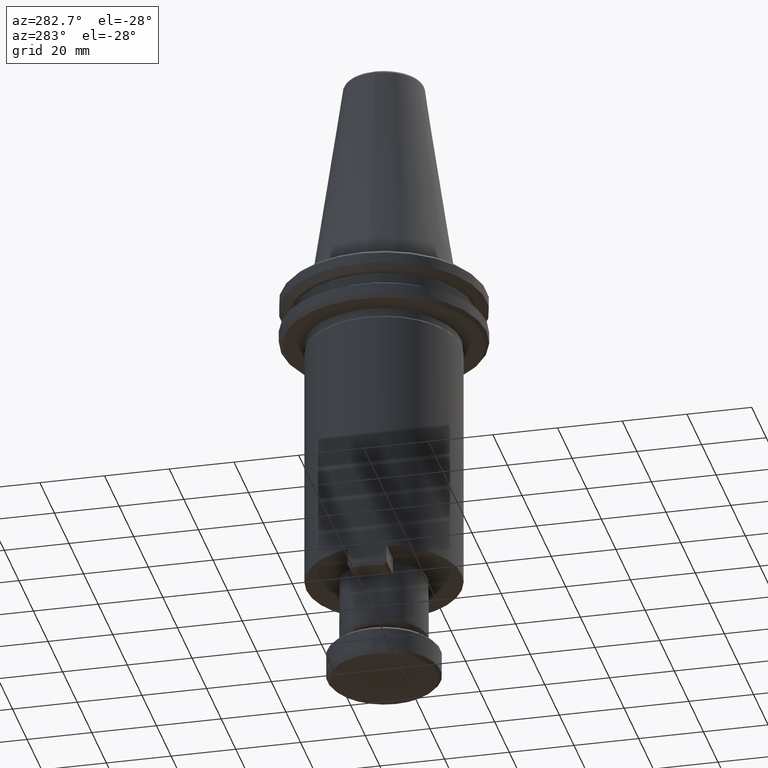
[diagram: clean part render]
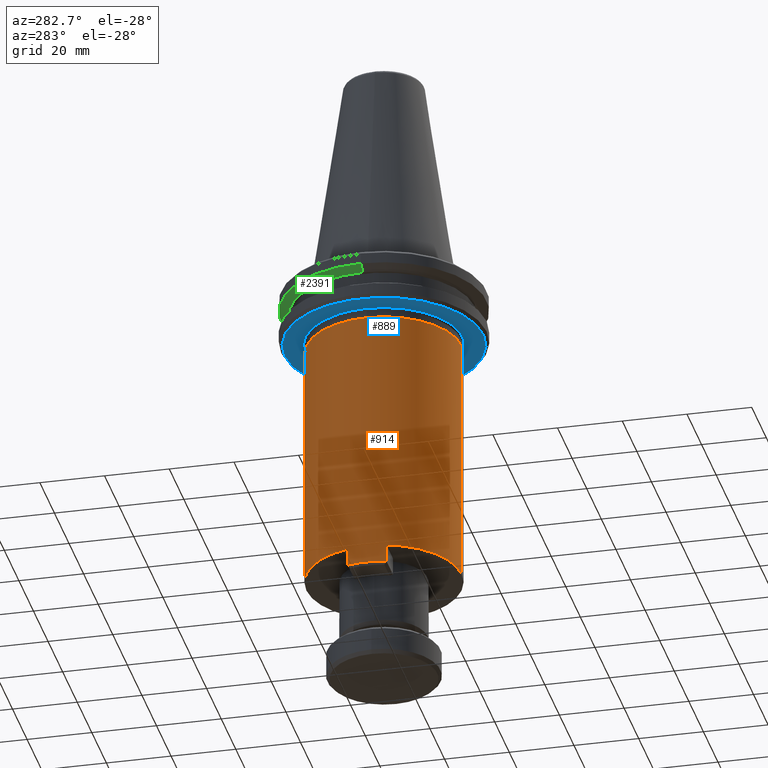
[diagram: same view with three faces highlighted in distinct colors, each labeled with its STEP entity id]
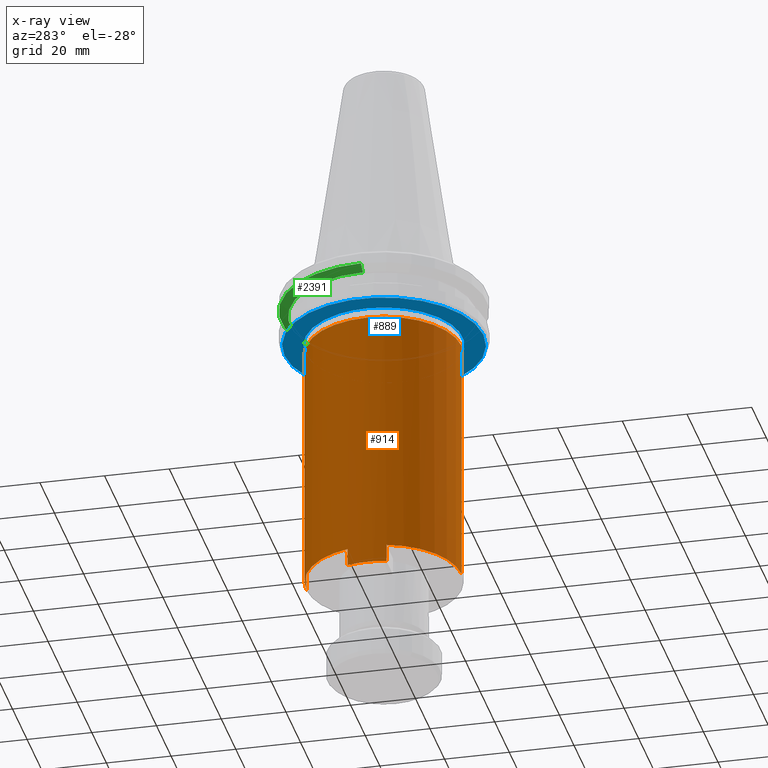
[diagram: x-ray of the same camera — body ghosted, the three highlighted faces saturated]
A machine part, auxiliary view with three faces highlighted in distinct colors.
The next image is the same camera in x-ray (body ghosted, the three faces saturated) — at least one of them is partly hidden behind the body in this view.
Their STEP definitions:

[orange] entity #914 — the highlighted cylindrical surface (partial cylindrical patch) has radius 24 mm, axis along (0, 0, 1).
#37 = VERTEX_POINT ( 'NONE', #691 ) ;
#139 = EDGE_CURVE ( 'NONE', #540, #1728, #2439, .T. ) ;
#225 = ORIENTED_EDGE ( 'NONE', *, *, #2622, .T. ) ;
#243 = ORIENTED_EDGE ( 'NONE', *, *, #2421, .T. ) ;
#244 = CARTESIAN_POINT ( 'NONE',  ( 71.81983096143052600, 87.85641994208592100, -11.28401357644060200 ) ) ;
#298 = DIRECTION ( 'NONE',  ( 1.000000000000000000, 0.0000000000000000000, 0.0000000000000000000 ) ) ;
#335 = AXIS2_PLACEMENT_3D ( 'NONE', #543, #2659, #2643 ) ;
#339 = CARTESIAN_POINT ( 'NONE',  ( 48.58193088314447300, 93.85641993805202800, -11.28401357644060200 ) ) ;
#346 = CARTESIAN_POINT ( 'NONE',  ( 71.81983096143052600, 87.85641994208592100, 72.11598642355937700 ) ) ;
#354 = EDGE_LOOP ( 'NONE', ( #1100, #1658, #225, #243, #1299, #357, #2103, #2603, #882 ) ) ;
#357 = ORIENTED_EDGE ( 'NONE', *, *, #777, .T. ) ;
#384 = DIRECTION ( 'NONE',  ( 0.0000000000000000000, 1.000000000000000000, 0.0000000000000000000 ) ) ;
#454 = DIRECTION ( 'NONE',  ( 0.0000000000000000000, 1.000000000000000000, 0.0000000000000000000 ) ) ;
#481 = CARTESIAN_POINT ( 'NONE',  ( 48.58193088431739400, 81.85641994157707300, -5.784013573940600700 ) ) ;
#503 = EDGE_CURVE ( 'NONE', #1728, #2199, #2778, .T. ) ;
#540 = VERTEX_POINT ( 'NONE', #1805 ) ;
#543 = CARTESIAN_POINT ( 'NONE',  ( 71.81983096143052600, 87.85641994208592100, -5.784013573940601600 ) ) ;
#577 = DIRECTION ( 'NONE',  ( 1.000000000000000000, 0.0000000000000000000, 0.0000000000000000000 ) ) ;
#593 = CARTESIAN_POINT ( 'NONE',  ( 71.81983096143052600, 63.85641994208590700, -5.784013571440600500 ) ) ;
#691 = CARTESIAN_POINT ( 'NONE',  ( 48.58193088366523700, 93.85641994006896000, -5.784013573940600700 ) ) ;
#716 = DIRECTION ( 'NONE',  ( 0.0000000000000000000, 1.000000000000000000, 0.0000000000000000000 ) ) ;
#726 = CYLINDRICAL_SURFACE ( 'NONE', #2476, 24.00000000000000700 ) ;
#755 = LINE ( 'NONE', #2178, #2768 ) ;
#777 = EDGE_CURVE ( 'NONE', #1572, #37, #1485, .T. ) ;
#828 = VECTOR ( 'NONE', #1631, 1000.000000000000000 ) ;
#849 = EDGE_CURVE ( 'NONE', #37, #1739, #1034, .T. ) ;
#861 = CIRCLE ( 'NONE', #2754, 24.00000000000000700 ) ;
#882 = ORIENTED_EDGE ( 'NONE', *, *, #139, .T. ) ;
#914 = ADVANCED_FACE ( 'NONE', ( #2485 ), #726, .T. ) ;
#956 = CARTESIAN_POINT ( 'NONE',  ( 71.81983096143052600, 111.8564199420859200, -5.784013573940601600 ) ) ;
#984 = DIRECTION ( 'NONE',  ( 0.0000000000000000000, 0.0000000000000000000, 1.000000000000000000 ) ) ;
#1012 = CIRCLE ( 'NONE', #1386, 23.99999999999999300 ) ;
#1028 = EDGE_CURVE ( 'NONE', #1739, #540, #861, .T. ) ;
#1034 = LINE ( 'NONE', #339, #828 ) ;
#1065 = DIRECTION ( 'NONE',  ( 0.0000000000000000000, 0.0000000000000000000, 1.000000000000000000 ) ) ;
#1067 = VERTEX_POINT ( 'NONE', #2081 ) ;
#1100 = ORIENTED_EDGE ( 'NONE', *, *, #503, .T. ) ;
#1158 = CARTESIAN_POINT ( 'NONE',  ( 71.81983096143052600, 87.85641994208592100, -11.28401357644060500 ) ) ;
#1163 = VERTEX_POINT ( 'NONE', #1705 ) ;
#1299 = ORIENTED_EDGE ( 'NONE', *, *, #1762, .F. ) ;
#1386 = AXIS2_PLACEMENT_3D ( 'NONE', #346, #1867, #577 ) ;
#1393 = DIRECTION ( 'NONE',  ( 0.0000000000000000000, 0.0000000000000000000, 1.000000000000000000 ) ) ;
#1435 = VECTOR ( 'NONE', #1972, 1000.000000000000000 ) ;
#1463 = DIRECTION ( 'NONE',  ( 0.0000000000000000000, 0.0000000000000000000, 1.000000000000000000 ) ) ;
#1485 = CIRCLE ( 'NONE', #335, 24.00000000000000700 ) ;
#1572 = VERTEX_POINT ( 'NONE', #956 ) ;
#1631 = DIRECTION ( 'NONE',  ( -0.0000000000000000000, -0.0000000000000000000, -1.000000000000000000 ) ) ;
#1658 = ORIENTED_EDGE ( 'NONE', *, *, #2531, .T. ) ;
#1689 = LINE ( 'NONE', #2385, #1435 ) ;
#1705 = CARTESIAN_POINT ( 'NONE',  ( 71.81983096143052600, 111.8564199420859200, 72.11598642355937700 ) ) ;
#1728 = VERTEX_POINT ( 'NONE', #481 ) ;
#1739 = VERTEX_POINT ( 'NONE', #2555 ) ;
#1762 = EDGE_CURVE ( 'NONE', #1572, #1163, #755, .T. ) ;
#1805 = CARTESIAN_POINT ( 'NONE',  ( 48.58193088459378100, 81.85641994164842600, -11.28401357672604500 ) ) ;
#1867 = DIRECTION ( 'NONE',  ( -0.0000000000000000000, 0.0000000000000000000, -1.000000000000000000 ) ) ;
#1972 = DIRECTION ( 'NONE',  ( 0.0000000000000000000, 0.0000000000000000000, 1.000000000000000000 ) ) ;
#1986 = AXIS2_PLACEMENT_3D ( 'NONE', #2271, #2410, #298 ) ;
#2028 = CARTESIAN_POINT ( 'NONE',  ( 71.81983096143052600, 87.85641994208592100, -5.784013571440600500 ) ) ;
#2081 = CARTESIAN_POINT ( 'NONE',  ( 71.81983096143052600, 63.85641994208590700, 72.11598642355937700 ) ) ;
#2103 = ORIENTED_EDGE ( 'NONE', *, *, #849, .T. ) ;
#2178 = CARTESIAN_POINT ( 'NONE',  ( 71.81983096143052600, 111.8564199420859200, -11.28401357644060200 ) ) ;
#2199 = VERTEX_POINT ( 'NONE', #593 ) ;
#2271 = CARTESIAN_POINT ( 'NONE',  ( 71.81983096143052600, 87.85641994208592100, 72.11598642355937700 ) ) ;
#2385 = CARTESIAN_POINT ( 'NONE',  ( 71.81983096143052600, 63.85641994208590700, -11.28401357644060200 ) ) ;
#2405 = CIRCLE ( 'NONE', #1986, 23.99999999999999300 ) ;
#2410 = DIRECTION ( 'NONE',  ( -0.0000000000000000000, 0.0000000000000000000, -1.000000000000000000 ) ) ;
#2421 = EDGE_CURVE ( 'NONE', #2752, #1163, #2405, .T. ) ;
#2439 = LINE ( 'NONE', #2666, #2644 ) ;
#2476 = AXIS2_PLACEMENT_3D ( 'NONE', #244, #2518, #454 ) ;
#2485 = FACE_OUTER_BOUND ( 'NONE', #354, .T. ) ;
#2518 = DIRECTION ( 'NONE',  ( 0.0000000000000000000, 0.0000000000000000000, 1.000000000000000000 ) ) ;
#2531 = EDGE_CURVE ( 'NONE', #2199, #1067, #1689, .T. ) ;
#2555 = CARTESIAN_POINT ( 'NONE',  ( 48.58193088366525100, 93.85641994006896000, -11.28401357644060500 ) ) ;
#2603 = ORIENTED_EDGE ( 'NONE', *, *, #1028, .T. ) ;
#2622 = EDGE_CURVE ( 'NONE', #1067, #2752, #1012, .T. ) ;
#2643 = DIRECTION ( 'NONE',  ( 0.0000000000000000000, 1.000000000000000000, 0.0000000000000000000 ) ) ;
#2644 = VECTOR ( 'NONE', #1065, 1000.000000000000000 ) ;
#2645 = AXIS2_PLACEMENT_3D ( 'NONE', #2028, #1463, #384 ) ;
#2659 = DIRECTION ( 'NONE',  ( 0.0000000000000000000, 0.0000000000000000000, 1.000000000000000000 ) ) ;
#2666 = CARTESIAN_POINT ( 'NONE',  ( 48.58193088444879500, 81.85641994106819700, -11.28401357644060200 ) ) ;
#2726 = CARTESIAN_POINT ( 'NONE',  ( 47.81983096143051900, 87.85641994208592100, 72.11598642355937700 ) ) ;
#2752 = VERTEX_POINT ( 'NONE', #2726 ) ;
#2754 = AXIS2_PLACEMENT_3D ( 'NONE', #1158, #1393, #716 ) ;
#2768 = VECTOR ( 'NONE', #984, 1000.000000000000000 ) ;
#2778 = CIRCLE ( 'NONE', #2645, 24.00000000000000700 ) ;

[blue] entity #889 — the highlighted planar face has unit normal (0, 0, -1).
#1 = CARTESIAN_POINT ( 'NONE',  ( 56.14560718262166000, 69.28717906333989200, 75.11598642355937700 ) ) ;
#13 = CARTESIAN_POINT ( 'NONE',  ( 63.23944049597944400, 65.12141512757895600, 75.11598642355939100 ) ) ;
#16 = DIRECTION ( 'NONE',  ( -1.000000000000000000, 0.0000000000000000000, -0.0000000000000000000 ) ) ;
#20 = CARTESIAN_POINT ( 'NONE',  ( 71.28960445991205600, 63.56216727250783500, 75.11598642355939100 ) ) ;
#32 = CARTESIAN_POINT ( 'NONE',  ( 79.32980179460986400, 64.74583914028653500, 75.11598642355937700 ) ) ;
#41 = CARTESIAN_POINT ( 'NONE',  ( 47.86084312643223600, 91.91335907272322500, 75.11598642355937700 ) ) ;
#46 = CARTESIAN_POINT ( 'NONE',  ( 88.62878004473859100, 70.28196637081762800, 75.11598642355937700 ) ) ;
#60 = CARTESIAN_POINT ( 'NONE',  ( 92.71083083689228500, 75.44441053301801500, 75.11598642355937700 ) ) ;
#83 = CARTESIAN_POINT ( 'NONE',  ( 63.60393548890107200, 110.7254108799852600, 75.11598642355936300 ) ) ;
#90 = B_SPLINE_CURVE_WITH_KNOTS ( 'NONE', 3,
 ( #807, #2284, #2818, #2179, #2557, #2428, #1640, #2596, #1519, #678, #1839, #1794, #878, #319, #307, #1813, #2272, #1664, #98, #1871, #170, #701, #1410, #2742, #802, #2353, #2157, #2127, #2384, #1457, #886, #1428, #943, #1570, #1724, #994, #1995, #1966, #1230, #1812, #2413, #1770, #1026, #709, #1670, #400, #1699, #1612, #1038, #1623, #2760, #1707, #174, #1013, #1343, #2747, #862, #83, #1538, #249, #797, #2252, #2114, #590, #694, #1482, #2268, #359, #235, #530, #2287, #2191, #2677, #1857, #628, #1384, #2243, #2454, #143, #2130, #2626, #950, #1325, #1824, #2313, #2755, #153, #2343, #93, #220, #2392, #1284, #1603, #1004, #344, #301, #485, #41, #2738, #1981, #2142, #468 ),
 .UNSPECIFIED., .F., .F.,
 ( 4, 1, 1, 1, 1, 2, 2, 1, 1, 1, 1, 2, 2, 1, 1, 1, 2, 2, 2, 1, 1, 1, 2, 2, 1, 1, 1, 1, 2, 2, 1, 1, 1, 1, 2, 2, 2, 1, 1, 1, 1, 2, 2, 1, 1, 1, 1, 2, 2, 1, 1, 1, 2, 2, 2, 1, 1, 1, 2, 2, 1, 1, 1, 1, 2, 2, 1, 1, 1, 1, 2, 2, 4 ),
 ( 0.0000000000000000000, 0.03125000000000852800, 0.04687500000001279500, 0.05468750000001448100, 0.05859375000001532100, 0.06054687500001574400, 0.06250000000001616800, 0.09375000000002062200, 0.1093750000000226100, 0.1171875000000235900, 0.1210937500000242900, 0.1230468750000246300, 0.1250000000000249500, 0.1562500000000290300, 0.1718750000000306400, 0.1796875000000314700, 0.1835937500000316700, 0.1875000000000318600, 0.2500000000000297000, 0.2812500000000286400, 0.2968750000000281400, 0.3046875000000278700, 0.3085937500000280900, 0.3125000000000283100, 0.3437500000000308600, 0.3593750000000320300, 0.3671875000000325900, 0.3710937500000328100, 0.3730468750000329700, 0.3750000000000330800, 0.4062500000000368000, 0.4218750000000386900, 0.4296875000000393000, 0.4335937500000396300, 0.4355468750000394700, 0.4375000000000393600, 0.5000000000000350800, 0.5312500000000332000, 0.5468750000000325300, 0.5546875000000324200, 0.5585937500000326400, 0.5605468750000327500, 0.5625000000000328600, 0.5937500000000343100, 0.6093750000000350800, 0.6171875000000353100, 0.6210937500000353100, 0.6230468750000351900, 0.6250000000000351900, 0.6562500000000353100, 0.6718750000000349700, 0.6796875000000349700, 0.6835937500000351900, 0.6875000000000355300, 0.7500000000000383000, 0.7812500000000398600, 0.7968750000000407500, 0.8046875000000413000, 0.8085937500000413000, 0.8125000000000411900, 0.8437500000000379700, 0.8593750000000366400, 0.8671875000000358600, 0.8710937500000350800, 0.8730468750000346400, 0.8750000000000341900, 0.9062500000000255400, 0.9218750000000214300, 0.9296875000000191000, 0.9335937500000176500, 0.9355468750000168800, 0.9375000000000159900, 1.000000000000000000 ),
 .UNSPECIFIED. ) ;
#93 = CARTESIAN_POINT ( 'NONE',  ( 48.93792385470063500, 96.03629825016767500, 75.11598642355939100 ) ) ;
#98 = CARTESIAN_POINT ( 'NONE',  ( 89.13995690686341800, 104.9273131230720800, 75.11598642355937700 ) ) ;
#124 = AXIS2_PLACEMENT_3D ( 'NONE', #2543, #2573, #773 ) ;
#143 = CARTESIAN_POINT ( 'NONE',  ( 51.30225341363285500, 100.8855517442787700, 75.11598642355939100 ) ) ;
#153 = CARTESIAN_POINT ( 'NONE',  ( 49.09203409571665600, 96.45848112672675300, 75.11598642355934900 ) ) ;
#170 = CARTESIAN_POINT ( 'NONE',  ( 87.75510569911000400, 106.2034963513865300, 75.11598642355937700 ) ) ;
#174 = CARTESIAN_POINT ( 'NONE',  ( 65.74306053115211100, 111.4009294224825900, 75.11598642355936300 ) ) ;
#214 = DIRECTION ( 'NONE',  ( 0.0000000000000000000, -1.000000000000000000, 0.0000000000000000000 ) ) ;
#218 = CARTESIAN_POINT ( 'NONE',  ( 101.6523825784305200, 56.73741994208590700, 75.11598642355937700 ) ) ;
#220 = CARTESIAN_POINT ( 'NONE',  ( 48.90780394067354600, 95.95154200844176300, 75.11598642355943400 ) ) ;
#235 = CARTESIAN_POINT ( 'NONE',  ( 58.20963871837712800, 108.0099512348069800, 75.11598642355939100 ) ) ;
#241 = CARTESIAN_POINT ( 'NONE',  ( 47.83935935055882300, 83.92846447165393900, 75.11598642355937700 ) ) ;
#249 = CARTESIAN_POINT ( 'NONE',  ( 62.87025090474886500, 110.4591158119570500, 75.11598642355937700 ) ) ;
#255 = CARTESIAN_POINT ( 'NONE',  ( 50.47548202507320500, 76.24102604823322300, 75.11598642355937700 ) ) ;
#267 = CARTESIAN_POINT ( 'NONE',  ( 57.62097878973898400, 68.11319871308862200, 75.11598642355937700 ) ) ;
#280 = CARTESIAN_POINT ( 'NONE',  ( 63.44369199315632100, 65.04562974956230900, 75.11598642355936300 ) ) ;
#288 = ORIENTED_EDGE ( 'NONE', *, *, #2438, .T. ) ;
#289 = CARTESIAN_POINT ( 'NONE',  ( 73.07303697392644900, 63.57112564946210400, 75.11598642355937700 ) ) ;
#297 = CARTESIAN_POINT ( 'NONE',  ( 79.58454050567327400, 64.83018385700434300, 75.11598642355939100 ) ) ;
#301 = CARTESIAN_POINT ( 'NONE',  ( 47.89794043091836100, 92.12803531173020100, 75.11598642355936300 ) ) ;
#305 = CARTESIAN_POINT ( 'NONE',  ( 89.92560946658068100, 71.64750289409393200, 75.11598642355939100 ) ) ;
#307 = CARTESIAN_POINT ( 'NONE',  ( 90.45081349812012700, 103.4570105528448100, 75.11598642355939100 ) ) ;
#316 = CARTESIAN_POINT ( 'NONE',  ( 93.43168745793947500, 76.66738806904696400, 75.11598642355937700 ) ) ;
#319 = CARTESIAN_POINT ( 'NONE',  ( 90.53463866858059800, 103.3567273417562100, 75.11598642355936300 ) ) ;
#344 = CARTESIAN_POINT ( 'NONE',  ( 47.95256896646582600, 92.42788620597208600, 75.11598642355937700 ) ) ;
#352 = PLANE ( 'NONE',  #2654 ) ;
#359 = CARTESIAN_POINT ( 'NONE',  ( 59.11910830979128000, 108.5856312221892900, 75.11598642355937700 ) ) ;
#400 = CARTESIAN_POINT ( 'NONE',  ( 71.63818052430740100, 112.1560196836617500, 75.11598642355940600 ) ) ;
#455 = ORIENTED_EDGE ( 'NONE', *, *, #1717, .T. ) ;
#468 = CARTESIAN_POINT ( 'NONE',  ( 47.51983096122486900, 87.85641994208592100, 75.11598642354606200 ) ) ;
#470 = CARTESIAN_POINT ( 'NONE',  ( 94.48980008417414900, 79.10641994208579300, 75.11598642355926400 ) ) ;
#483 = CARTESIAN_POINT ( 'NONE',  ( 48.17478146783729200, 82.17683557610035900, 75.11598642355937700 ) ) ;
#485 = CARTESIAN_POINT ( 'NONE',  ( 47.87554630154097200, 91.99926465271433100, 75.11598642355937700 ) ) ;
#491 = CARTESIAN_POINT ( 'NONE',  ( 50.60505270832406700, 76.00604247393604900, 75.11598642355937700 ) ) ;
#499 = CARTESIAN_POINT ( 'NONE',  ( 59.20091961234456300, 67.08838480679433800, 75.11598642355940600 ) ) ;
#511 = CARTESIAN_POINT ( 'NONE',  ( 64.77783223502922300, 64.56100091690946400, 75.11598642355939100 ) ) ;
#515 = DIRECTION ( 'NONE',  ( 0.0000000000000000000, 0.0000000000000000000, -1.000000000000000000 ) ) ;
#518 = CARTESIAN_POINT ( 'NONE',  ( 74.88927219483835500, 63.74992595542805400, 75.11598642355936300 ) ) ;
#522 = CARTESIAN_POINT ( 'NONE',  ( 82.38692161184289400, 65.92551682451356500, 75.11598642355937700 ) ) ;
#530 = CARTESIAN_POINT ( 'NONE',  ( 57.19622106284457900, 107.2695982720471600, 75.11598642355939100 ) ) ;
#535 = CARTESIAN_POINT ( 'NONE',  ( 90.22140265927342300, 71.98587360049077700, 75.11598642355936300 ) ) ;
#547 = CARTESIAN_POINT ( 'NONE',  ( 94.48980008417414900, 79.10641994208579300, 75.11598642355926400 ) ) ;
#590 = CARTESIAN_POINT ( 'NONE',  ( 60.00908136049428500, 109.0934100894121700, 75.11598642355937700 ) ) ;
#601 = CARTESIAN_POINT ( 'NONE',  ( 94.48980008264287300, 96.60641994208603500, 75.11598642355926400 ) ) ;
#628 = CARTESIAN_POINT ( 'NONE',  ( 55.09332643523355000, 105.5441276097464400, 75.11598642355937700 ) ) ;
#629 = AXIS2_PLACEMENT_3D ( 'NONE', #1686, #2430, #214 ) ;
#678 = CARTESIAN_POINT ( 'NONE',  ( 92.40123681930566600, 100.7940618100786200, 75.11598642355937700 ) ) ;
#694 = CARTESIAN_POINT ( 'NONE',  ( 59.89514260754879900, 109.0293683670513900, 75.11598642355939100 ) ) ;
#701 = CARTESIAN_POINT ( 'NONE',  ( 87.54991468426084100, 106.3783818568867000, 75.11598642355937700 ) ) ;
#709 = CARTESIAN_POINT ( 'NONE',  ( 72.55185880740195600, 112.1498573055933000, 75.11598642355940600 ) ) ;
#715 = CARTESIAN_POINT ( 'NONE',  ( 48.68318043694245000, 80.42406336751508900, 75.11598642355937700 ) ) ;
#727 = CARTESIAN_POINT ( 'NONE',  ( 52.19508445655509400, 73.45165542164944800, 75.11598642355939100 ) ) ;
#735 = CARTESIAN_POINT ( 'NONE',  ( 59.58773863058338800, 66.85956305325113600, 75.11598642355939100 ) ) ;
#743 = CARTESIAN_POINT ( 'NONE',  ( 68.02442044943576600, 63.84539541200579300, 75.11598642355937700 ) ) ;
#752 = CARTESIAN_POINT ( 'NONE',  ( 75.32061358365119500, 63.80987219772989500, 75.11598642355934900 ) ) ;
#763 = CARTESIAN_POINT ( 'NONE',  ( 85.23286300677484900, 67.57039199997115000, 75.11598642355937700 ) ) ;
#769 = CARTESIAN_POINT ( 'NONE',  ( 90.31016344241459100, 72.08938281986435500, 75.11598642355936300 ) ) ;
#773 = DIRECTION ( 'NONE',  ( 0.0000000000000000000, -1.000000000000000000, 0.0000000000000000000 ) ) ;
#797 = CARTESIAN_POINT ( 'NONE',  ( 61.90598458345075300, 110.0614124921854100, 75.11598642355939100 ) ) ;
#802 = CARTESIAN_POINT ( 'NONE',  ( 86.14512055190050400, 107.5393321904742100, 75.11598642355937700 ) ) ;
#807 = CARTESIAN_POINT ( 'NONE',  ( 94.48980008264287300, 96.60641994208603500, 75.11598642355926400 ) ) ;
#838 = EDGE_LOOP ( 'NONE', ( #970, #1402, #455 ) ) ;
#850 = CIRCLE ( 'NONE', #124, 30.75000000010500000 ) ;
#862 = CARTESIAN_POINT ( 'NONE',  ( 63.68235387212080700, 110.7534329985660300, 75.11598642355937700 ) ) ;
#878 = CARTESIAN_POINT ( 'NONE',  ( 90.72822737158891500, 103.1213165129633500, 75.11598642355939100 ) ) ;
#886 = CARTESIAN_POINT ( 'NONE',  ( 80.01622369805920700, 110.7325662249014200, 75.11598642355937700 ) ) ;
#889 = ADVANCED_FACE ( 'NONE', ( #2572, #1254 ), #352, .T. ) ;
#943 = CARTESIAN_POINT ( 'NONE',  ( 79.75618120818451500, 110.8240567981742700, 75.11598642355936300 ) ) ;
#946 = CARTESIAN_POINT ( 'NONE',  ( 48.82110805353578800, 80.01099567543286600, 75.11598642355937700 ) ) ;
#950 = CARTESIAN_POINT ( 'NONE',  ( 50.74016329659141900, 99.94550553201949600, 75.11598642355937700 ) ) ;
#955 = CARTESIAN_POINT ( 'NONE',  ( 54.33334163532871500, 70.95508717635667000, 75.11598642355937700 ) ) ;
#961 = CARTESIAN_POINT ( 'NONE',  ( 59.70575273162809500, 66.79126000009631500, 75.11598642355939100 ) ) ;
#970 = ORIENTED_EDGE ( 'NONE', *, *, #2533, .T. ) ;
#972 = CARTESIAN_POINT ( 'NONE',  ( 70.16957927466505400, 63.60844356387497800, 75.11598642355937700 ) ) ;
#981 = CARTESIAN_POINT ( 'NONE',  ( 75.44857834917421300, 63.82884891059002500, 75.11598642355937700 ) ) ;
#991 = CARTESIAN_POINT ( 'NONE',  ( 86.77575074025230600, 68.70255229632653000, 75.11598642355936300 ) ) ;
#994 = CARTESIAN_POINT ( 'NONE',  ( 76.73175019207693000, 111.6596661940705000, 75.11598642355937700 ) ) ;
#997 = CARTESIAN_POINT ( 'NONE',  ( 91.43051157004546800, 73.47701807248877500, 75.11598642355937700 ) ) ;
#1004 = CARTESIAN_POINT ( 'NONE',  ( 48.07132830556123800, 93.02513208727499700, 75.11598642355937700 ) ) ;
#1013 = CARTESIAN_POINT ( 'NONE',  ( 64.62811742742748300, 111.0720815845333400, 75.11598642355937700 ) ) ;
#1016 = CARTESIAN_POINT ( 'NONE',  ( 71.81983096143052600, 87.85641994208592100, 75.11598642355937700 ) ) ;
#1026 = CARTESIAN_POINT ( 'NONE',  ( 73.76695053588154800, 112.0959479351910500, 75.11598642355939100 ) ) ;
#1027 = AXIS2_PLACEMENT_3D ( 'NONE', #1016, #2484, #1212 ) ;
#1038 = CARTESIAN_POINT ( 'NONE',  ( 71.37479615926314100, 112.1523791414060400, 75.11598642355939100 ) ) ;
#1094 = CIRCLE ( 'NONE', #629, 30.75000000010500000 ) ;
#1113 = VERTEX_POINT ( 'NONE', #470 ) ;
#1141 = CARTESIAN_POINT ( 'NONE',  ( 47.67975255400573800, 85.03790480720071800, 75.11598642355936300 ) ) ;
#1146 = CARTESIAN_POINT ( 'NONE',  ( 48.86319909754080700, 79.88867053141065400, 75.11598642355937700 ) ) ;
#1156 = CARTESIAN_POINT ( 'NONE',  ( 55.72891606047405600, 69.64563633024222600, 75.11598642355936300 ) ) ;
#1164 = CARTESIAN_POINT ( 'NONE',  ( 61.27509800123415600, 65.94398970896914100, 75.11598642355939100 ) ) ;
#1169 = CARTESIAN_POINT ( 'NONE',  ( 71.04180231609947800, 63.56862494441940500, 75.11598642355934900 ) ) ;
#1172 = CARTESIAN_POINT ( 'NONE',  ( 77.26012885307585500, 64.15398725325540900, 75.11598642355937700 ) ) ;
#1185 = CARTESIAN_POINT ( 'NONE',  ( 87.13242009641211900, 68.98784836465796400, 75.11598642355940600 ) ) ;
#1195 = CARTESIAN_POINT ( 'NONE',  ( 92.43998580046661600, 74.99742645389095200, 75.11598642355939100 ) ) ;
#1212 = DIRECTION ( 'NONE',  ( -1.000000000000000000, 0.0000000000000000000, 0.0000000000000000000 ) ) ;
#1230 = CARTESIAN_POINT ( 'NONE',  ( 75.67080451094948000, 111.8493790089203200, 75.11598642355936300 ) ) ;
#1254 = FACE_OUTER_BOUND ( 'NONE', #1578, .T. ) ;
#1284 = CARTESIAN_POINT ( 'NONE',  ( 48.64818110792310800, 95.20838954381629500, 75.11598642355936300 ) ) ;
#1325 = CARTESIAN_POINT ( 'NONE',  ( 50.69409488939521000, 99.86480340045588400, 75.11598642355936300 ) ) ;
#1327 = CARTESIAN_POINT ( 'NONE',  ( 47.51983096388478600, 87.19020566870928200, 75.11598642355940600 ) ) ;
#1336 = CARTESIAN_POINT ( 'NONE',  ( 47.80033173166346200, 84.17322166353943700, 75.11598642355937700 ) ) ;
#1343 = CARTESIAN_POINT ( 'NONE',  ( 64.07530562246944300, 110.8903498958729700, 75.11598642355939100 ) ) ;
#1347 = CARTESIAN_POINT ( 'NONE',  ( 49.51460315223854300, 78.16730394422262400, 75.11598642355937700 ) ) ;
#1355 = CARTESIAN_POINT ( 'NONE',  ( 56.07470685863305000, 69.34724799246784200, 75.11598642355937700 ) ) ;
#1362 = CARTESIAN_POINT ( 'NONE',  ( 62.95466553725830000, 65.23003399614552200, 75.11598642355937700 ) ) ;
#1370 = CARTESIAN_POINT ( 'NONE',  ( 71.24988962820396000, 63.56306999128310100, 75.11598642355939100 ) ) ;
#1377 = CARTESIAN_POINT ( 'NONE',  ( 79.07324605897011300, 64.66296907850902200, 75.11598642355939100 ) ) ;
#1384 = CARTESIAN_POINT ( 'NONE',  ( 54.06464490352688300, 104.5111875574796200, 75.11598642355939100 ) ) ;
#1389 = CARTESIAN_POINT ( 'NONE',  ( 87.82921330508921200, 69.56138643692376900, 75.11598642355937700 ) ) ;
#1397 = CARTESIAN_POINT ( 'NONE',  ( 92.66618086356034200, 75.36956180612057200, 75.11598642355937700 ) ) ;
#1402 = ORIENTED_EDGE ( 'NONE', *, *, #2585, .T. ) ;
#1410 = CARTESIAN_POINT ( 'NONE',  ( 87.41242018597783700, 106.4942649191954700, 75.11598642355937700 ) ) ;
#1428 = CARTESIAN_POINT ( 'NONE',  ( 79.84395533516914200, 110.7935472125247700, 75.11598642355939100 ) ) ;
#1457 = CARTESIAN_POINT ( 'NONE',  ( 80.27399503373187900, 110.6396877512640300, 75.11598642355937700 ) ) ;
#1482 = CARTESIAN_POINT ( 'NONE',  ( 59.81928113576612600, 108.9864616068494900, 75.11598642355939100 ) ) ;
#1519 = CARTESIAN_POINT ( 'NONE',  ( 92.77731822471147900, 100.1558337872006300, 75.11598642355936300 ) ) ;
#1534 = CIRCLE ( 'NONE', #1027, 24.30000000000000100 ) ;
#1538 = CARTESIAN_POINT ( 'NONE',  ( 63.56655965361622400, 110.7119524367219400, 75.11598642355937700 ) ) ;
#1549 = CARTESIAN_POINT ( 'NONE',  ( 71.81983096143052600, 118.6064199421909300, 75.11598642366438100 ) ) ;
#1559 = CARTESIAN_POINT ( 'NONE',  ( 47.83297530092351500, 83.96766196825441900, 75.11598642355937700 ) ) ;
#1565 = CARTESIAN_POINT ( 'NONE',  ( 50.34702828883470700, 76.47806598214775400, 75.11598642355936300 ) ) ;
#1570 = CARTESIAN_POINT ( 'NONE',  ( 78.99005220707276500, 111.0856364861177800, 75.11598642355937700 ) ) ;
#1575 = CARTESIAN_POINT ( 'NONE',  ( 56.76615444669432300, 68.76727650267031300, 75.11598642355937700 ) ) ;
#1578 = EDGE_LOOP ( 'NONE', ( #2653, #288 ) ) ;
#1587 = CARTESIAN_POINT ( 'NONE',  ( 63.36193204282372400, 65.07581687525583900, 75.11598642355936300 ) ) ;
#1598 = CARTESIAN_POINT ( 'NONE',  ( 72.03024718858681300, 63.54731529351802500, 75.11598642355937700 ) ) ;
#1603 = CARTESIAN_POINT ( 'NONE',  ( 48.34685605575414500, 94.20980022115730900, 75.11598642355937700 ) ) ;
#1606 = CARTESIAN_POINT ( 'NONE',  ( 79.50060456998308200, 64.80205331218157000, 75.11598642355939100 ) ) ;
#1612 = CARTESIAN_POINT ( 'NONE',  ( 71.42034113374343500, 112.1531740694599500, 75.11598642355939100 ) ) ;
#1616 = CARTESIAN_POINT ( 'NONE',  ( 89.50308655192324600, 71.18236961119590900, 75.11598642355936300 ) ) ;
#1623 = CARTESIAN_POINT ( 'NONE',  ( 70.00118803220746600, 112.1248939677035600, 75.11598642355936300 ) ) ;
#1627 = CARTESIAN_POINT ( 'NONE',  ( 92.73405542662941100, 75.48359063779894000, 75.11598642355936300 ) ) ;
#1640 = CARTESIAN_POINT ( 'NONE',  ( 92.83929259980710900, 100.0496133690512600, 75.11598642355936300 ) ) ;
#1664 = CARTESIAN_POINT ( 'NONE',  ( 89.87245942993324400, 104.1386544899630000, 75.11598642355937700 ) ) ;
#1670 = CARTESIAN_POINT ( 'NONE',  ( 71.94296466502794400, 112.1572293338040300, 75.11598642355937700 ) ) ;
#1686 = CARTESIAN_POINT ( 'NONE',  ( 71.81983096143052600, 87.85641994208592100, 75.11598642366438100 ) ) ;
#1699 = CARTESIAN_POINT ( 'NONE',  ( 71.50748652052711000, 112.1544521912619800, 75.11598642355937700 ) ) ;
#1707 = CARTESIAN_POINT ( 'NONE',  ( 66.71470232373064800, 111.6234580732308500, 75.11598642355936300 ) ) ;
#1717 = EDGE_CURVE ( 'NONE', #2767, #1820, #90, .T. ) ;
#1724 = CARTESIAN_POINT ( 'NONE',  ( 77.95704718130508600, 111.3880319703273800, 75.11598642355937700 ) ) ;
#1770 = CARTESIAN_POINT ( 'NONE',  ( 74.80383506383248000, 111.9825993651647700, 75.11598642355937700 ) ) ;
#1771 = CARTESIAN_POINT ( 'NONE',  ( 47.51983096122486900, 87.85641994208592100, 75.11598642354606200 ) ) ;
#1777 = CARTESIAN_POINT ( 'NONE',  ( 47.96039880002398800, 83.19762818048917600, 75.11598642355939100 ) ) ;
#1786 = CARTESIAN_POINT ( 'NONE',  ( 50.56202602633520400, 76.08340702323805300, 75.11598642355937700 ) ) ;
#1794 = CARTESIAN_POINT ( 'NONE',  ( 91.10739133200753800, 102.6448281770327400, 75.11598642355939100 ) ) ;
#1797 = EDGE_CURVE ( 'NONE', #2309, #2177, #850, .T. ) ;
#1798 = CARTESIAN_POINT ( 'NONE',  ( 58.66627284078291600, 67.41857780170448700, 75.11598642355937700 ) ) ;
#1802 = CARTESIAN_POINT ( 'NONE',  ( 63.48646807486582600, 65.02997141486224600, 75.11598642355936300 ) ) ;
#1806 = CARTESIAN_POINT ( 'NONE',  ( 74.28468396914698200, 63.67726564552852900, 75.11598642355937700 ) ) ;
#1812 = CARTESIAN_POINT ( 'NONE',  ( 75.58196562451161100, 111.8634673726032500, 75.11598642355937700 ) ) ;
#1813 = CARTESIAN_POINT ( 'NONE',  ( 90.39473925482265300, 103.5237311059908300, 75.11598642355934900 ) ) ;
#1817 = CARTESIAN_POINT ( 'NONE',  ( 81.05530004642609800, 65.33227585034005400, 75.11598642355937700 ) ) ;
#1820 = VERTEX_POINT ( 'NONE', #2493 ) ;
#1824 = CARTESIAN_POINT ( 'NONE',  ( 50.29663151144856700, 99.15953717945733100, 75.11598642355936300 ) ) ;
#1828 = CARTESIAN_POINT ( 'NONE',  ( 90.13321333917565400, 71.88380245122014900, 75.11598642355939100 ) ) ;
#1836 = CARTESIAN_POINT ( 'NONE',  ( 94.00988888803507800, 77.86304028398784300, 75.11598642355936300 ) ) ;
#1839 = CARTESIAN_POINT ( 'NONE',  ( 91.83366547045291400, 101.6691847917921800, 75.11598642355937700 ) ) ;
#1857 = CARTESIAN_POINT ( 'NONE',  ( 56.28463377719173600, 106.5421340286824100, 75.11598642355937700 ) ) ;
#1871 = CARTESIAN_POINT ( 'NONE',  ( 88.22652960573080300, 105.7880037876271000, 75.11598642355940600 ) ) ;
#1966 = CARTESIAN_POINT ( 'NONE',  ( 75.80397299927072700, 111.8278841397002200, 75.11598642355939100 ) ) ;
#1981 = CARTESIAN_POINT ( 'NONE',  ( 47.62871374860246500, 90.51285049609394700, 75.11598642355937700 ) ) ;
#1988 = CARTESIAN_POINT ( 'NONE',  ( 48.50102560910435300, 81.00511935617730300, 75.11598642355937700 ) ) ;
#1995 = CARTESIAN_POINT ( 'NONE',  ( 76.11407058267137400, 111.7751931789833400, 75.11598642355937700 ) ) ;
#1999 = CARTESIAN_POINT ( 'NONE',  ( 51.36800565209564000, 74.65211012632626400, 75.11598642355939100 ) ) ;
#2004 = CARTESIAN_POINT ( 'NONE',  ( 59.47124293463524200, 66.92756767453477100, 75.11598642355936300 ) ) ;
#2015 = CARTESIAN_POINT ( 'NONE',  ( 66.05985138108761100, 64.21141853579055700, 75.11598642355939100 ) ) ;
#2023 = CARTESIAN_POINT ( 'NONE',  ( 75.19125748970434100, 63.79115368834438700, 75.11598642355937700 ) ) ;
#2029 = CARTESIAN_POINT ( 'NONE',  ( 84.30269780567654400, 66.99488454637116800, 75.11598642355936300 ) ) ;
#2038 = CARTESIAN_POINT ( 'NONE',  ( 90.28002136863698000, 72.05409879122724700, 75.11598642355939100 ) ) ;
#2114 = CARTESIAN_POINT ( 'NONE',  ( 60.27596426760077000, 109.2406118493268000, 75.11598642355937700 ) ) ;
#2127 = CARTESIAN_POINT ( 'NONE',  ( 82.04746515897881000, 109.9205958178864600, 75.11598642355939100 ) ) ;
#2129 = B_SPLINE_CURVE_WITH_KNOTS ( 'NONE', 3,
 ( #1771, #1327, #2395, #1141, #2619, #1336, #2821, #1559, #241, #1777, #483, #1988, #715, #2195, #946, #2407, #1146, #2630, #1347, #2827, #1565, #255, #1786, #491, #1999, #727, #2204, #955, #2419, #1156, #2638, #1355, #1, #1575, #267, #1798, #499, #2004, #735, #2213, #961, #2424, #1164, #2646, #1362, #13, #1587, #280, #1802, #511, #2015, #743, #2219, #972, #2431, #1169, #2655, #1370, #20, #1598, #289, #1806, #518, #2023, #752, #2224, #981, #2447, #1172, #2660, #1377, #32, #1606, #297, #1817, #522, #2029, #763, #2235, #991, #2456, #1185, #2667, #1389, #46, #1616, #305, #1828, #535, #2038, #769, #2248, #997, #2460, #1195, #2683, #1397, #60, #1627, #316, #1836, #547 ),
 .UNSPECIFIED., .F., .F.,
 ( 4, 1, 1, 1, 1, 2, 2, 1, 1, 1, 1, 2, 2, 1, 1, 1, 2, 2, 2, 1, 1, 1, 2, 2, 1, 1, 1, 1, 2, 2, 1, 1, 1, 1, 2, 2, 2, 1, 1, 1, 1, 2, 2, 1, 1, 1, 1, 2, 2, 1, 1, 1, 2, 2, 2, 1, 1, 1, 2, 2, 1, 1, 1, 1, 2, 2, 1, 1, 1, 1, 2, 2, 4 ),
 ( 0.0000000000000000000, 0.03125000000000823600, 0.04687500000001237200, 0.05468750000001443300, 0.05859375000001516800, 0.06054687500001550800, 0.06250000000001584800, 0.09375000000001498800, 0.1093750000000145600, 0.1171875000000143500, 0.1210937500000142400, 0.1230468750000144700, 0.1250000000000147100, 0.1562500000000221800, 0.1718750000000258400, 0.1796875000000273400, 0.1835937500000277600, 0.1875000000000281700, 0.2500000000000285300, 0.2812500000000288100, 0.2968750000000288700, 0.3046875000000288100, 0.3085937500000284200, 0.3125000000000280900, 0.3437500000000267000, 0.3593750000000258100, 0.3671875000000253700, 0.3710937500000252000, 0.3730468750000252600, 0.3750000000000253100, 0.4062500000000250900, 0.4218750000000248100, 0.4296875000000250900, 0.4335937500000252600, 0.4355468750000252000, 0.4375000000000251500, 0.5000000000000171000, 0.5312500000000132100, 0.5468750000000108800, 0.5546875000000097700, 0.5585937500000092100, 0.5605468750000093300, 0.5625000000000093300, 0.5937500000000097700, 0.6093750000000098800, 0.6171875000000098800, 0.6210937500000098800, 0.6230468750000102100, 0.6250000000000105500, 0.6562500000000105500, 0.6718750000000108800, 0.6796875000000113200, 0.6835937500000114400, 0.6875000000000115500, 0.7500000000000111000, 0.7812500000000105500, 0.7968750000000101000, 0.8046875000000096600, 0.8085937500000095500, 0.8125000000000093300, 0.8437500000000078800, 0.8593750000000073300, 0.8671875000000068800, 0.8710937500000066600, 0.8730468750000067700, 0.8750000000000067700, 0.9062500000000079900, 0.9218750000000085500, 0.9296875000000088800, 0.9335937500000088800, 0.9355468750000089900, 0.9375000000000091000, 1.000000000000000000 ),
 .UNSPECIFIED. ) ;
#2130 = CARTESIAN_POINT ( 'NONE',  ( 50.97017739886309300, 100.3400944178703600, 75.11598642355937700 ) ) ;
#2142 = CARTESIAN_POINT ( 'NONE',  ( 47.51983096388477900, 89.18920188286873000, 75.11598642355937700 ) ) ;
#2157 = CARTESIAN_POINT ( 'NONE',  ( 83.02552897402075900, 109.4308945783384800, 75.11598642355936300 ) ) ;
#2177 = VERTEX_POINT ( 'NONE', #1549 ) ;
#2179 = CARTESIAN_POINT ( 'NONE',  ( 93.32570851761360600, 99.17828569441884700, 75.11598642355939100 ) ) ;
#2191 = CARTESIAN_POINT ( 'NONE',  ( 56.49191371292309300, 106.7125478495631500, 75.11598642355936300 ) ) ;
#2195 = CARTESIAN_POINT ( 'NONE',  ( 48.77901604016260300, 80.13473590350881200, 75.11598642355939100 ) ) ;
#2204 = CARTESIAN_POINT ( 'NONE',  ( 53.59721856456735600, 71.76412299455864700, 75.11598642355939100 ) ) ;
#2213 = CARTESIAN_POINT ( 'NONE',  ( 59.66554528200167300, 66.81443041835707700, 75.11598642355939100 ) ) ;
#2219 = CARTESIAN_POINT ( 'NONE',  ( 69.01101366476355300, 63.70312594440348900, 75.11598642355937700 ) ) ;
#2224 = CARTESIAN_POINT ( 'NONE',  ( 75.40683627399775400, 63.82258442198536800, 75.11598642355939100 ) ) ;
#2235 = CARTESIAN_POINT ( 'NONE',  ( 86.26954067370689900, 68.31325864967898600, 75.11598642355936300 ) ) ;
#2243 = CARTESIAN_POINT ( 'NONE',  ( 52.66243833726608900, 102.8237153375427900, 75.11598642355937700 ) ) ;
#2248 = CARTESIAN_POINT ( 'NONE',  ( 90.78982489448476700, 72.65391540173313000, 75.11598642355937700 ) ) ;
#2252 = CARTESIAN_POINT ( 'NONE',  ( 60.81383334941539000, 109.5260996667804800, 75.11598642355937700 ) ) ;
#2268 = CARTESIAN_POINT ( 'NONE',  ( 59.78259482797142300, 108.9655867541129800, 75.11598642355937700 ) ) ;
#2272 = CARTESIAN_POINT ( 'NONE',  ( 90.36749877873377600, 103.5559739520052300, 75.11598642355936300 ) ) ;
#2284 = CARTESIAN_POINT ( 'NONE',  ( 94.24990811084715900, 97.22794494887054400, 75.11598642355939100 ) ) ;
#2287 = CARTESIAN_POINT ( 'NONE',  ( 56.70141978535762900, 106.8822402129638400, 75.11598642355937700 ) ) ;
#2309 = VERTEX_POINT ( 'NONE', #2824 ) ;
#2313 = CARTESIAN_POINT ( 'NONE',  ( 49.81016736079384100, 98.19938352409258200, 75.11598642355940600 ) ) ;
#2343 = CARTESIAN_POINT ( 'NONE',  ( 48.98344346808453100, 96.16327793545939100, 75.11598642355939100 ) ) ;
#2353 = CARTESIAN_POINT ( 'NONE',  ( 84.94125924970576600, 108.3614445982914800, 75.11598642355937700 ) ) ;
#2384 = CARTESIAN_POINT ( 'NONE',  ( 80.87104302299734100, 110.4131223673601700, 75.11598642355937700 ) ) ;
#2392 = CARTESIAN_POINT ( 'NONE',  ( 48.89238893530641400, 95.90777118601886300, 75.11598642355937700 ) ) ;
#2395 = CARTESIAN_POINT ( 'NONE',  ( 47.56066200817095800, 86.19417673361427000, 75.11598642355936300 ) ) ;
#2407 = CARTESIAN_POINT ( 'NONE',  ( 48.84939597622748400, 79.92855935815958900, 75.11598642355939100 ) ) ;
#2413 = CARTESIAN_POINT ( 'NONE',  ( 75.53611201129476200, 111.8706055405546100, 75.11598642355937700 ) ) ;
#2419 = CARTESIAN_POINT ( 'NONE',  ( 55.25349991387199800, 70.07199024697187900, 75.11598642355937700 ) ) ;
#2424 = CARTESIAN_POINT ( 'NONE',  ( 60.34858194213742900, 66.42309868935288400, 75.11598642355936300 ) ) ;
#2428 = CARTESIAN_POINT ( 'NONE',  ( 92.90186062599237000, 99.94154793076937400, 75.11598642355936300 ) ) ;
#2430 = DIRECTION ( 'NONE',  ( -0.0000000000000000000, 5.463695987303006200E-017, -1.000000000000000000 ) ) ;
#2431 = CARTESIAN_POINT ( 'NONE',  ( 70.75074712762055600, 63.57892703986264800, 75.11598642355939100 ) ) ;
#2438 = EDGE_CURVE ( 'NONE', #2177, #2309, #1094, .T. ) ;
#2447 = CARTESIAN_POINT ( 'NONE',  ( 76.20437381380359900, 63.94440747561215200, 75.11598642355936300 ) ) ;
#2454 = CARTESIAN_POINT ( 'NONE',  ( 52.00189816642913600, 101.9518765837448200, 75.11598642355937700 ) ) ;
#2456 = CARTESIAN_POINT ( 'NONE',  ( 86.99009889014593000, 68.87321964241698400, 75.11598642355936300 ) ) ;
#2460 = CARTESIAN_POINT ( 'NONE',  ( 92.11413510002245200, 74.48300664032069600, 75.11598642355937700 ) ) ;
#2484 = DIRECTION ( 'NONE',  ( -0.0000000000000000000, -0.0000000000000000000, 1.000000000000000000 ) ) ;
#2493 = CARTESIAN_POINT ( 'NONE',  ( 47.51983096122486900, 87.85641994208592100, 75.11598642354606200 ) ) ;
#2533 = EDGE_CURVE ( 'NONE', #1820, #1113, #2129, .T. ) ;
#2543 = CARTESIAN_POINT ( 'NONE',  ( 71.81983096143052600, 87.85641994208592100, 75.11598642366438100 ) ) ;
#2557 = CARTESIAN_POINT ( 'NONE',  ( 93.04583435970903300, 99.68842321739106200, 75.11598642355937700 ) ) ;
#2572 = FACE_BOUND ( 'NONE', #838, .T. ) ;
#2573 = DIRECTION ( 'NONE',  ( -0.0000000000000000000, 5.463695987303006200E-017, -1.000000000000000000 ) ) ;
#2585 = EDGE_CURVE ( 'NONE', #1113, #2767, #1534, .T. ) ;
#2596 = CARTESIAN_POINT ( 'NONE',  ( 92.79738836069483900, 100.1215644208530800, 75.11598642355936300 ) ) ;
#2619 = CARTESIAN_POINT ( 'NONE',  ( 47.75716140879836000, 84.46120930179330300, 75.11598642355936300 ) ) ;
#2626 = CARTESIAN_POINT ( 'NONE',  ( 50.83166189859641500, 100.1036923694077200, 75.11598642355937700 ) ) ;
#2630 = CARTESIAN_POINT ( 'NONE',  ( 49.11521852226726300, 79.16682097932020700, 75.11598642355937700 ) ) ;
#2638 = CARTESIAN_POINT ( 'NONE',  ( 55.93595233916002500, 69.46616919763582100, 75.11598642355937700 ) ) ;
#2646 = CARTESIAN_POINT ( 'NONE',  ( 62.38927022214505100, 65.45616351919646500, 75.11598642355937700 ) ) ;
#2653 = ORIENTED_EDGE ( 'NONE', *, *, #1797, .T. ) ;
#2654 = AXIS2_PLACEMENT_3D ( 'NONE', #218, #515, #16 ) ;
#2655 = CARTESIAN_POINT ( 'NONE',  ( 71.16664123873354700, 63.56516465349299200, 75.11598642355937700 ) ) ;
#2660 = CARTESIAN_POINT ( 'NONE',  ( 78.47215500108464400, 64.47976397348371300, 75.11598642355937700 ) ) ;
#2667 = CARTESIAN_POINT ( 'NONE',  ( 87.20445766932083100, 69.04654862257564200, 75.11598642355940600 ) ) ;
#2677 = CARTESIAN_POINT ( 'NONE',  ( 56.35281002417050900, 106.5986014369292100, 75.11598642355937700 ) ) ;
#2683 = CARTESIAN_POINT ( 'NONE',  ( 92.59892088455259800, 75.25749274308961400, 75.11598642355936300 ) ) ;
#2738 = CARTESIAN_POINT ( 'NONE',  ( 47.85328449208265100, 91.86844438443850400, 75.11598642355936300 ) ) ;
#2742 = CARTESIAN_POINT ( 'NONE',  ( 87.34442210532078800, 106.5509467494043000, 75.11598642355939100 ) ) ;
#2747 = CARTESIAN_POINT ( 'NONE',  ( 63.80006465671645100, 110.7951571091212900, 75.11598642355937700 ) ) ;
#2755 = CARTESIAN_POINT ( 'NONE',  ( 49.31872813659298100, 97.04455654494177000, 75.11598642355936300 ) ) ;
#2760 = CARTESIAN_POINT ( 'NONE',  ( 68.67928760902150000, 111.9893941418781700, 75.11598642355937700 ) ) ;
#2767 = VERTEX_POINT ( 'NONE', #601 ) ;
#2818 = CARTESIAN_POINT ( 'NONE',  ( 93.85316359530736500, 98.14245826361198500, 75.11598642355937700 ) ) ;
#2821 = CARTESIAN_POINT ( 'NONE',  ( 47.81979027620609900, 84.04987555738414100, 75.11598642355937700 ) ) ;
#2824 = CARTESIAN_POINT ( 'NONE',  ( 71.81983096143052600, 57.10641994198091700, 75.11598642366438100 ) ) ;
#2827 = CARTESIAN_POINT ( 'NONE',  ( 50.05683876386016400, 77.03543893623501000, 75.11598642355939100 ) ) ;

[green] entity #2391 — the highlighted conical surface has half-angle 60 deg.
#71 = VECTOR ( 'NONE', #2308, 1000.000000000000000 ) ;
#100 = DIRECTION ( 'NONE',  ( -0.0000000000000000000, 0.0000000000000000000, -1.000000000000000000 ) ) ;
#111 = DIRECTION ( 'NONE',  ( 1.000000000000000000, 0.0000000000000000000, 0.0000000000000000000 ) ) ;
#161 = DIRECTION ( 'NONE',  ( 1.000000000000000000, 0.0000000000000000000, 0.0000000000000000000 ) ) ;
#182 = EDGE_CURVE ( 'NONE', #615, #2148, #2702, .T. ) ;
#256 = FACE_OUTER_BOUND ( 'NONE', #2487, .T. ) ;
#265 = DIRECTION ( 'NONE',  ( 0.0000000000000000000, -0.0000000000000000000, 1.000000000000000000 ) ) ;
#393 = DIRECTION ( 'NONE',  ( 0.8660254038213651700, 0.0000000000000000000, 0.4999999999360413800 ) ) ;
#403 = CIRCLE ( 'NONE', #1904, 28.94089652943149100 ) ;
#615 = VERTEX_POINT ( 'NONE', #2054 ) ;
#688 = EDGE_CURVE ( 'NONE', #2111, #615, #897, .T. ) ;
#778 = CARTESIAN_POINT ( 'NONE',  ( 100.7607274908620100, 87.85641994208592100, 85.01598642092176300 ) ) ;
#884 = ORIENTED_EDGE ( 'NONE', *, *, #688, .T. ) ;
#897 = LINE ( 'NONE', #1392, #71 ) ;
#957 = EDGE_CURVE ( 'NONE', #2539, #2111, #403, .T. ) ;
#1014 = CARTESIAN_POINT ( 'NONE',  ( 71.81983096143052600, 87.85641994208592100, 86.63782306563010100 ) ) ;
#1189 = VECTOR ( 'NONE', #393, 1000.000000000000000 ) ;
#1387 = ORIENTED_EDGE ( 'NONE', *, *, #1597, .F. ) ;
#1392 = CARTESIAN_POINT ( 'NONE',  ( 40.06983096130803500, 87.85641994208592100, 86.63782306563010100 ) ) ;
#1414 = ORIENTED_EDGE ( 'NONE', *, *, #957, .T. ) ;
#1483 = AXIS2_PLACEMENT_3D ( 'NONE', #2047, #265, #2656 ) ;
#1504 = LINE ( 'NONE', #1730, #1189 ) ;
#1597 = EDGE_CURVE ( 'NONE', #2539, #2148, #1504, .T. ) ;
#1601 = CARTESIAN_POINT ( 'NONE',  ( 71.81983096143052600, 87.85641994208592100, 85.01598642092176300 ) ) ;
#1730 = CARTESIAN_POINT ( 'NONE',  ( 103.5698309615530100, 87.85641994208592100, 86.63782306563010100 ) ) ;
#1904 = AXIS2_PLACEMENT_3D ( 'NONE', #1601, #2757, #161 ) ;
#1943 = CARTESIAN_POINT ( 'NONE',  ( 42.87893443199902100, 87.85641994208592100, 85.01598642092176300 ) ) ;
#2047 = CARTESIAN_POINT ( 'NONE',  ( 71.81983096143052600, 87.85641994208592100, 86.63782306563010100 ) ) ;
#2054 = CARTESIAN_POINT ( 'NONE',  ( 40.06983096130803500, 87.85641994208592100, 86.63782306563010100 ) ) ;
#2111 = VERTEX_POINT ( 'NONE', #1943 ) ;
#2148 = VERTEX_POINT ( 'NONE', #2378 ) ;
#2308 = DIRECTION ( 'NONE',  ( -0.8660254038213651700, 1.060575238770128900E-016, 0.4999999999360413800 ) ) ;
#2326 = ORIENTED_EDGE ( 'NONE', *, *, #182, .T. ) ;
#2378 = CARTESIAN_POINT ( 'NONE',  ( 103.5698309615530100, 87.85641994208592100, 86.63782306563010100 ) ) ;
#2391 = ADVANCED_FACE ( 'NONE', ( #256 ), #2779, .T. ) ;
#2487 = EDGE_LOOP ( 'NONE', ( #1414, #884, #2326, #1387 ) ) ;
#2539 = VERTEX_POINT ( 'NONE', #778 ) ;
#2569 = AXIS2_PLACEMENT_3D ( 'NONE', #1014, #100, #111 ) ;
#2656 = DIRECTION ( 'NONE',  ( 1.000000000000000000, 0.0000000000000000000, 0.0000000000000000000 ) ) ;
#2702 = CIRCLE ( 'NONE', #2569, 31.75000000012248700 ) ;
#2757 = DIRECTION ( 'NONE',  ( 0.0000000000000000000, -0.0000000000000000000, 1.000000000000000000 ) ) ;
#2779 = CONICAL_SURFACE ( 'NONE', #1483, 31.75000000012248700, 1.047197551270450800 ) ;